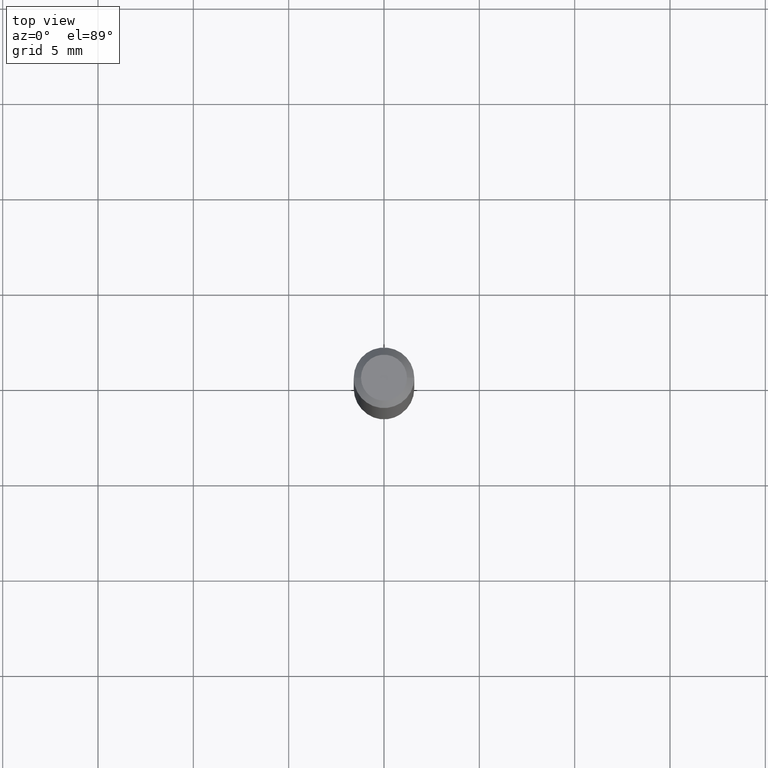
[diagram: clean part render]
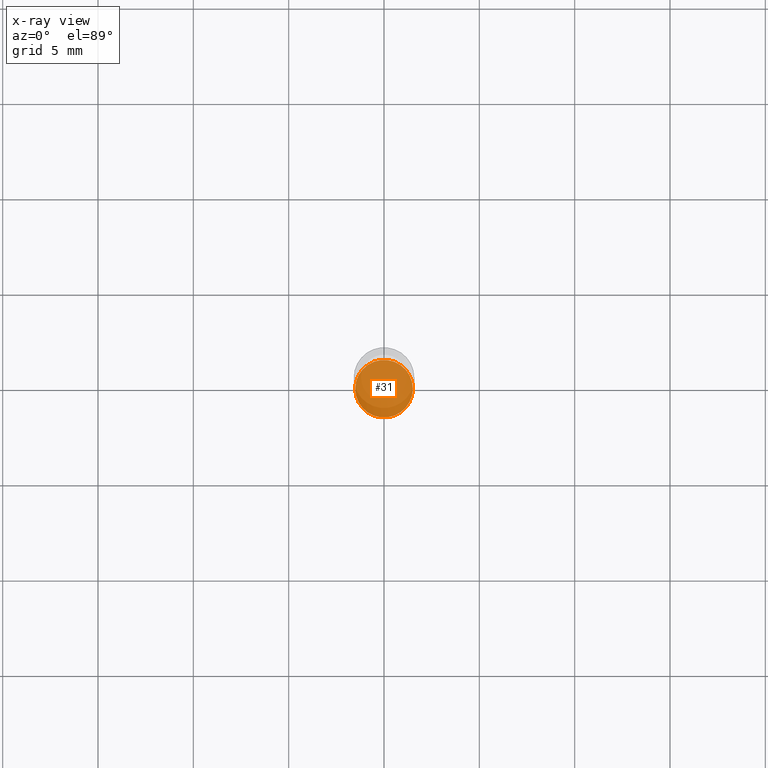
[diagram: x-ray — body ghosted, one internal face saturated and labeled with its STEP entity id]
A machine part, top view, then the same camera in x-ray: the body is ghosted and one INTERNAL B-rep face — a face not visible from any outside direction — is saturated and labeled: STEP entity #31.
In plain terms, the highlighted planar face has unit normal (-0, 0, 1).
Its self-contained STEP definition (entity closure, byte-faithful):
#4 = DIRECTION ( 'NONE',  ( 1.000000000000000000, -6.982962677686259611E-15, 0.000000000000000000 ) ) ;
#31 = ADVANCED_FACE ( 'NONE', ( #189 ), #296, .F. ) ;
#40 = CARTESIAN_POINT ( 'NONE',  ( -0.05949999999999999734, -4.183333212321580856E-15, -1.319999999999999840 ) ) ;
#45 = EDGE_CURVE ( 'NONE', #279, #430, #388, .T. ) ;
#46 = DIRECTION ( 'NONE',  ( -2.445468806185136597E-29, 3.491481338843145583E-15, 1.000000000000000000 ) ) ;
#71 = ORIENTED_EDGE ( 'NONE', *, *, #423, .F. ) ;
#76 = DIRECTION ( 'NONE',  ( -2.438088387897960049E-29, 3.491481338843145188E-15, 1.000000000000000000 ) ) ;
#84 = EDGE_LOOP ( 'NONE', ( #253, #71 ) ) ;
#105 = DIRECTION ( 'NONE',  ( -2.445468806185136597E-29, 3.491481338843145583E-15, 1.000000000000000000 ) ) ;
#171 = AXIS2_PLACEMENT_3D ( 'NONE', #222, #46, #225 ) ;
#189 = FACE_OUTER_BOUND ( 'NONE', #84, .T. ) ;
#191 = DIRECTION ( 'NONE',  ( 1.000000000000000000, -6.982962677686265922E-15, 4.876176775795935793E-29 ) ) ;
#193 = CARTESIAN_POINT ( 'NONE',  ( 3.228018824164379882E-29, -4.608755367272951648E-15, -1.319999999999999840 ) ) ;
#203 = AXIS2_PLACEMENT_3D ( 'NONE', #193, #105, #4 ) ;
#222 = CARTESIAN_POINT ( 'NONE',  ( 3.228018824164379882E-29, -4.608755367272951648E-15, -1.319999999999999840 ) ) ;
#225 = DIRECTION ( 'NONE',  ( 1.000000000000000000, -6.982962677686259611E-15, 0.000000000000000000 ) ) ;
#253 = ORIENTED_EDGE ( 'NONE', *, *, #45, .F. ) ;
#279 = VERTEX_POINT ( 'NONE', #393 ) ;
#296 = PLANE ( 'NONE',  #408 ) ;
#388 = CIRCLE ( 'NONE', #171, 0.05949999999999999734 ) ;
#393 = CARTESIAN_POINT ( 'NONE',  ( 0.05949999999999999734, -5.024241646595283697E-15, -1.319999999999999840 ) ) ;
#397 = CARTESIAN_POINT ( 'NONE',  ( 3.228018824164380442E-29, -4.608755367272952437E-15, -1.320000000000000062 ) ) ;
#408 = AXIS2_PLACEMENT_3D ( 'NONE', #397, #76, #191 ) ;
#421 = CIRCLE ( 'NONE', #203, 0.05949999999999999734 ) ;
#423 = EDGE_CURVE ( 'NONE', #430, #279, #421, .T. ) ;
#430 = VERTEX_POINT ( 'NONE', #40 ) ;